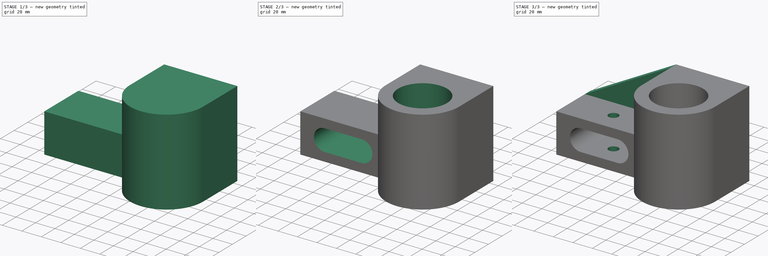
[diagram: build sequence overview — one tinted view per stage of 3, left to right]
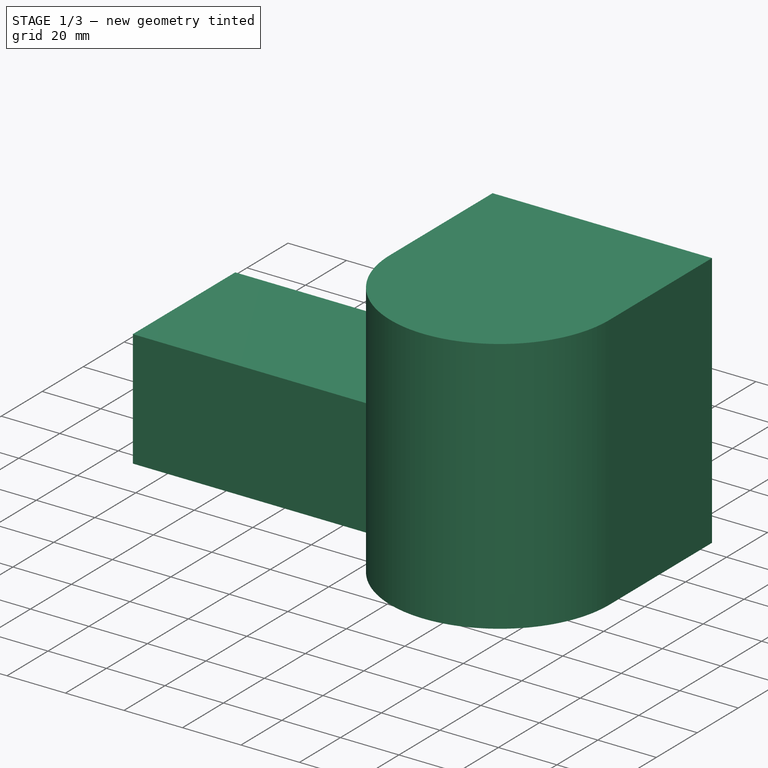
[diagram: stage 1 of 3 — iso view after this stage's code; geometry added in this stage tinted green]
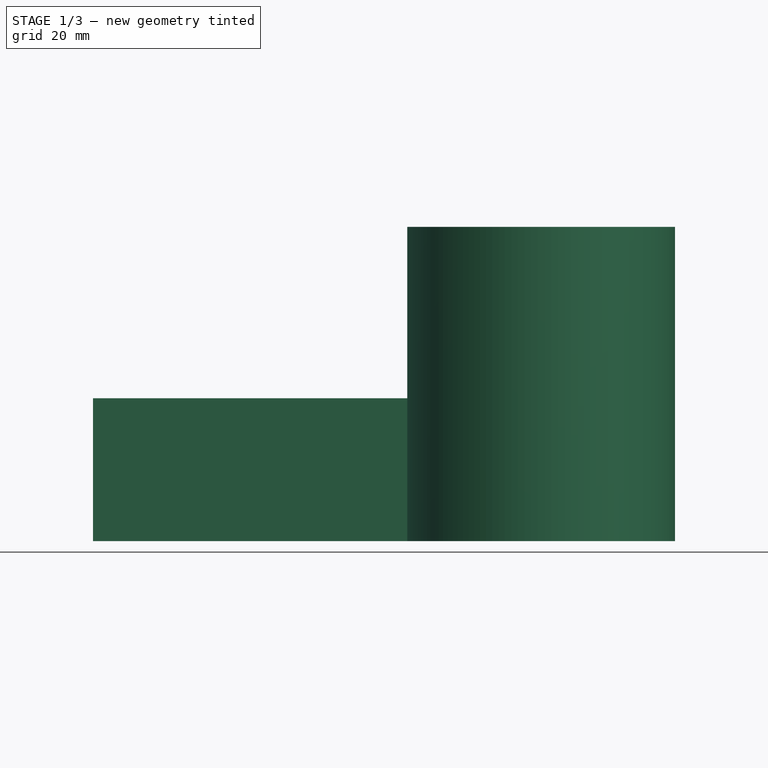
[diagram: stage 1 of 3 — front view after this stage's code; geometry added in this stage tinted green]
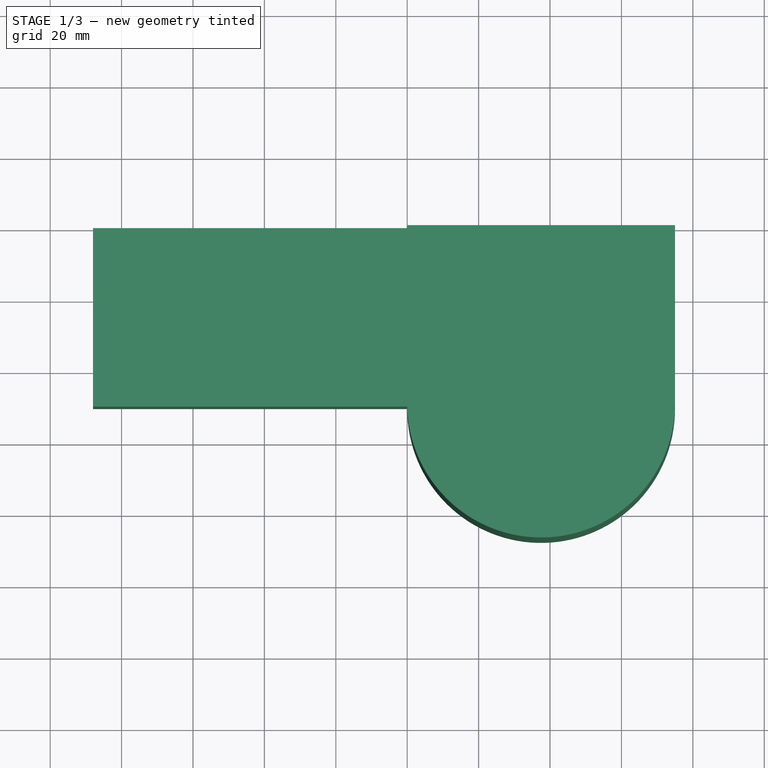
[diagram: stage 1 of 3 — top view after this stage's code; geometry added in this stage tinted green]
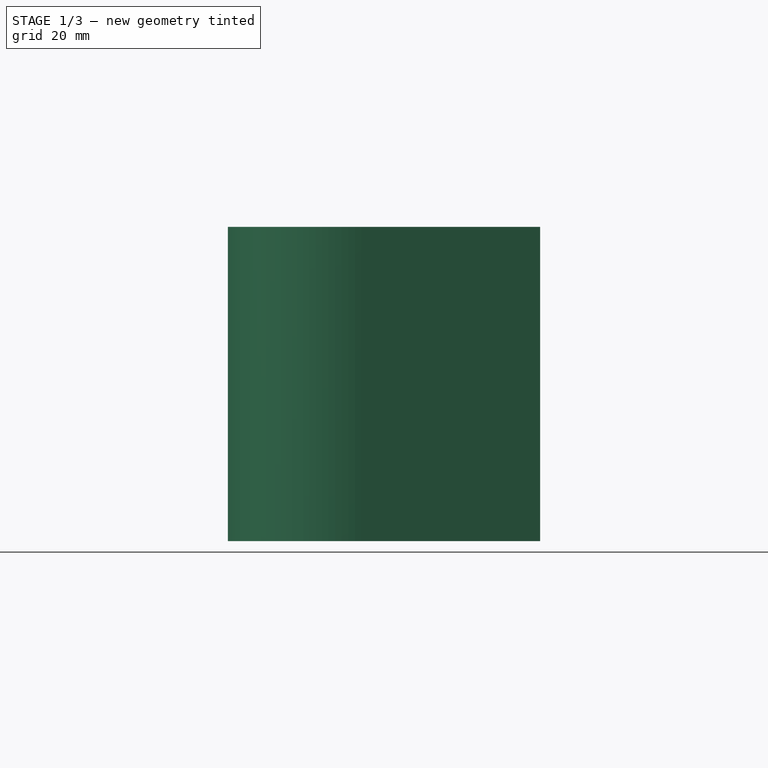
[diagram: stage 1 of 3 — right view after this stage's code; geometry added in this stage tinted green]
FCSTD DOCUMENT  (FreeCAD 0.18R4 (GitTag))
Label: lab 7 q4
License: All rights reserved
LicenseURL: http://en.wikipedia.org/wiki/All_rights_reserved
objects: Sketcher::SketchObject×9, PartDesign::Pad×3, PartDesign::Hole×2, PartDesign::Body×2, PartDesign::Pocket×1
note: 23 computed .brp shape members not serialized (recipe doc carries the construction recipe); baked Part::Feature solids carry a one-line shape summary decoded from their .brp

FEATURE [Sketcher::SketchObject] Sketch
  MapMode = 5
  Support = -> [XY_Plane]
  sketch-geometry (4):
    g0: LineSegment StartX=6.06732e-11 StartY=0 StartZ=0 EndX=75 EndY=0 EndZ=0
    g1: LineSegment StartX=75 StartY=0 StartZ=0 EndX=75 EndY=-50 EndZ=0
    g2: LineSegment StartX=6.06732e-11 StartY=0 StartZ=0 EndX=6.06732e-11 EndY=-50 EndZ=0
    g3: ArcOfCircle CenterX=37.5 CenterY=-49.9999 CenterZ=0 NormalX=0 NormalY=0 NormalZ=1 AngleXU=0 Radius=37.5 StartAngle=3.14159 EndAngle=6.28318
  constraints (12):
    c: Coincident(g0,g-1)
    c: Coincident(g2,g0)
    c: Horizontal(g0)
    c: Vertical(g2)
    c: Distance(g0) = 75
    c: Coincident(g1,g0)
    c: Vertical(g1)
    c: Distance(g2) = 50
    c: Distance(g1) = 50
    c: Coincident(g3,g2)
    c: Coincident(g3,g1)
    c: Radius(g3) = 37.5
FEATURE [PartDesign::Pad] Pad
  Length = 88
  Length2 = 100
  Midplane = true
  Profile = -> Sketch
  Type = 0
FEATURE [Sketcher::SketchObject] Sketch001
  MapMode = 5
  Placement = pos=(6.06732e-11,0,0) rot=(0.57735,-0.57735,-0.57735;2.0944rad)
  Support = -> [Pad]
FEATURE [Sketcher::SketchObject] Sketch002
  MapMode = 5
  Placement = pos=(6.06732e-11,0,0) rot=(0.57735,-0.57735,-0.57735;2.0944rad)
  Support = -> [Pad]
FEATURE [Sketcher::SketchObject] Sketch003
  MapMode = 5
  Placement = pos=(6.06732e-11,0,0) rot=(0.57735,-0.57735,-0.57735;2.0944rad)
  Support = -> [Pad]
FEATURE [Sketcher::SketchObject] Sketch004
  MapMode = 5
  Placement = pos=(6.06732e-11,0,0) rot=(0.57735,-0.57735,-0.57735;2.0944rad)
  Support = -> [Pad]
  sketch-geometry (5):
    g0: GeomPoint X=-1.42399e-05 Y=-4 Z=0
    g1: LineSegment StartX=-1.42399e-05 StartY=-4 StartZ=0 EndX=50 EndY=-4 EndZ=0
    g2: LineSegment StartX=50 StartY=-4 StartZ=0 EndX=50 EndY=-44 EndZ=0
    g3: LineSegment StartX=50 StartY=-44 StartZ=0 EndX=-1.42399e-05 EndY=-44 EndZ=0
    g4: LineSegment StartX=-1.42399e-05 StartY=-44 StartZ=0 EndX=-1.42399e-05 EndY=-4 EndZ=0
  constraints (13):
    c: Distance(g0,g-1) = 4
    c: DistanceY(g0,g-1) = 4
    c: Coincident(g1,g2)
    c: Coincident(g2,g3)
    c: Coincident(g3,g4)
    c: Coincident(g4,g1)
    c: Horizontal(g1)
    c: Horizontal(g3)
    c: Vertical(g2)
    c: Vertical(g4)
    c: Coincident(g1,g0)
    c: Distance(g1) = 50
    c: Distance(g4) = 40
FEATURE [PartDesign::Pad] Pad001
  BaseFeature = -> Pad
  Length = 88
  Length2 = 100
  Profile = -> Sketch004
  Type = 0
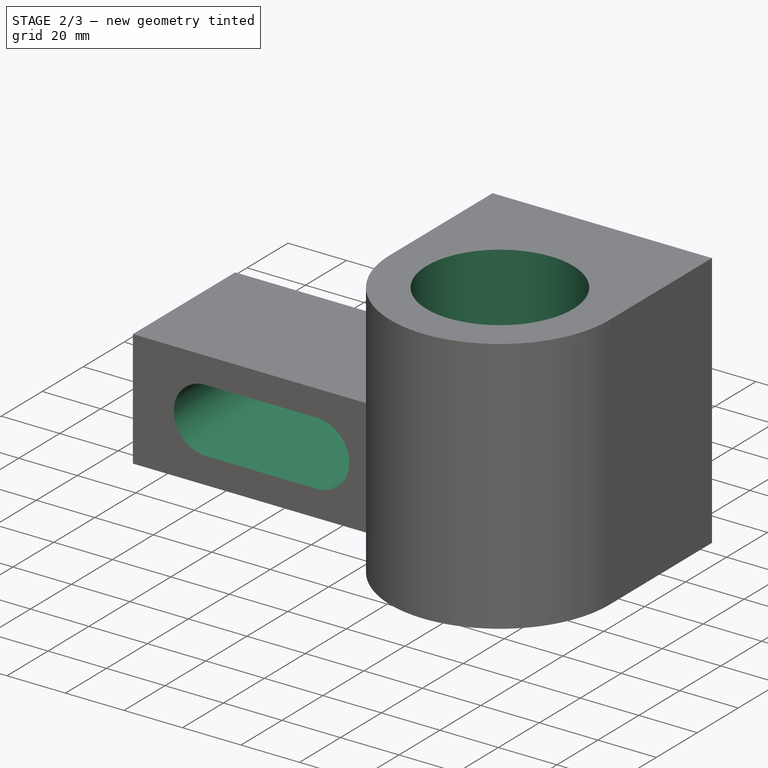
[diagram: stage 2 of 3 — iso view after this stage's code; geometry added in this stage tinted green]
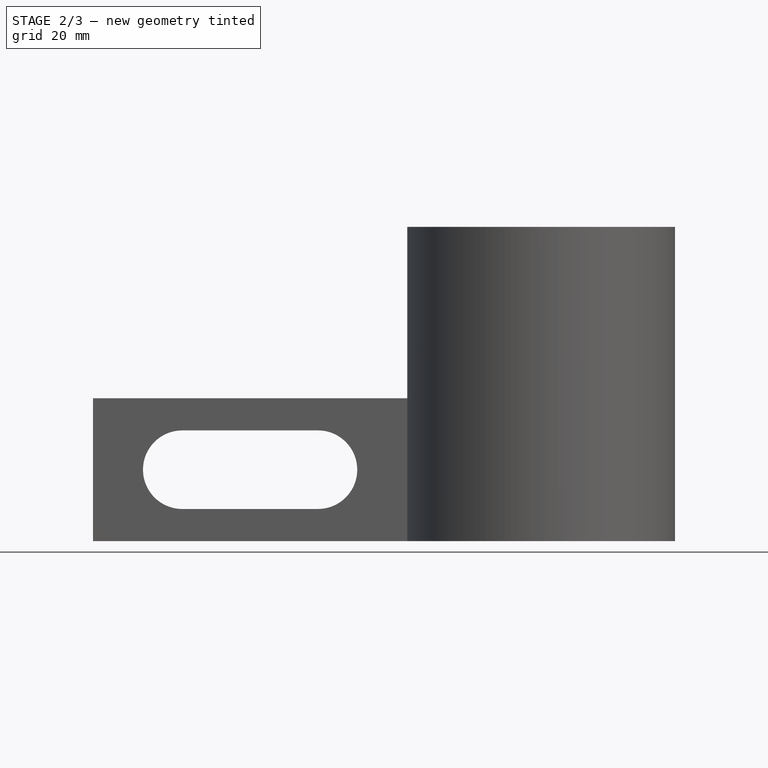
[diagram: stage 2 of 3 — front view after this stage's code; geometry added in this stage tinted green]
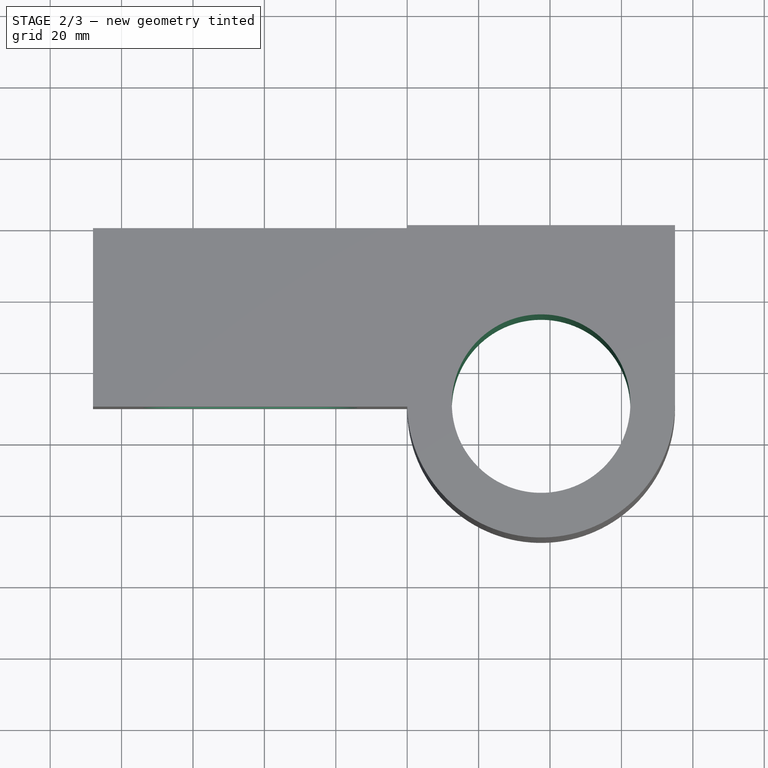
[diagram: stage 2 of 3 — top view after this stage's code; geometry added in this stage tinted green]
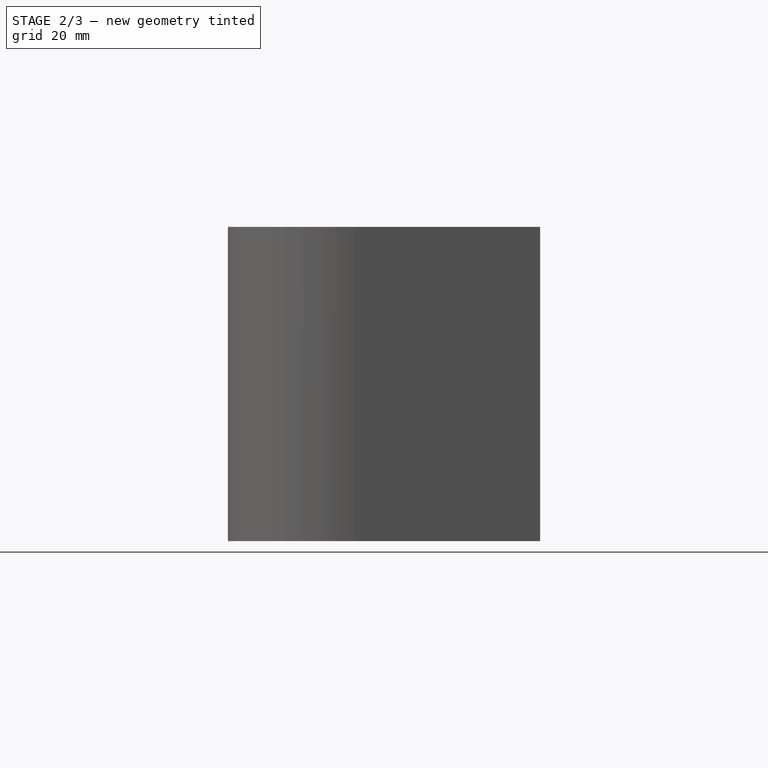
[diagram: stage 2 of 3 — right view after this stage's code; geometry added in this stage tinted green]
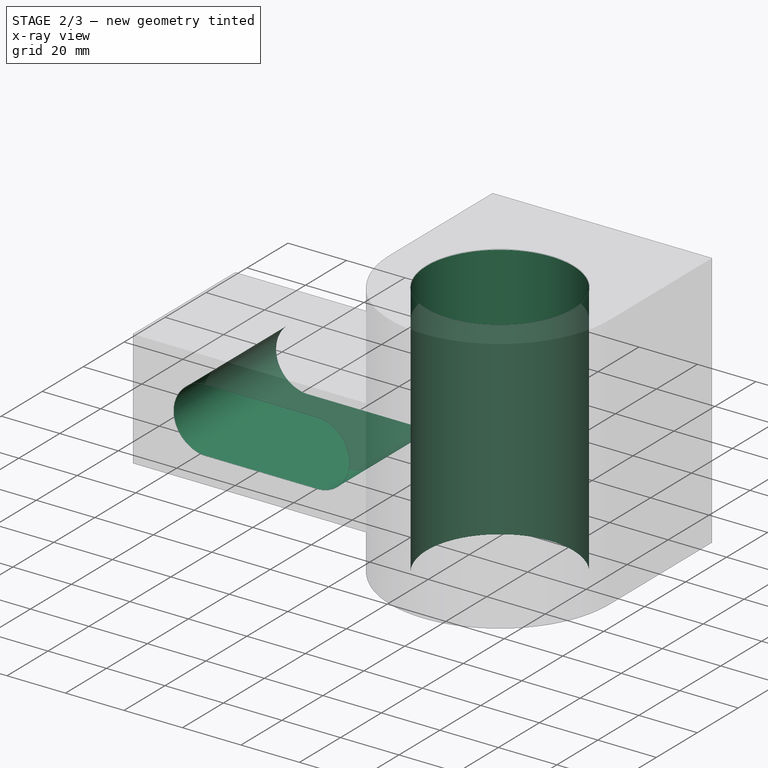
[diagram: stage 2 of 3 — x-ray composite at the iso view; earlier geometry ghosted, this stage's added geometry solid]
FEATURE [Sketcher::SketchObject] Sketch005
  MapMode = 5
  Placement = pos=(0,0,44) rot=(0,0,1;0rad)
  Support = -> [Pad001]
  sketch-geometry (2):
    g0: GeomPoint X=37.5 Y=-50 Z=0
    g1: Circle CenterX=37.5 CenterY=-50 CenterZ=0 NormalX=0 NormalY=0 NormalZ=1 AngleXU=0 Radius=25
  constraints (4):
    c: DistanceX(g-1,g0) = 37.5
    c: DistanceY(g0,g-1) = 50
    c: Coincident(g1,g0)
    c: Radius(g1) = 25
FEATURE [PartDesign::Hole] Hole
  BaseFeature = -> Pad001
  Depth = 88
  DepthType = 0
  Diameter = 50
  DrillPoint = 0
  DrillPointAngle = 0
  HoleCutCountersinkAngle = 90
  HoleCutDepth = 0
  HoleCutDiameter = 0
  HoleCutType = 0
  ModelActualThread = false
  Profile = -> Sketch005
  Tapered = false
  TaperedAngle = 90
  ThreadAngle = 0
  ThreadClass = 0
  ThreadCutOffInner = 0
  ThreadCutOffOuter = 0
  ThreadDirection = 0
  ThreadFit = 0
  ThreadPitch = 0
  ThreadSize = 0
  ThreadType = 0
  Threaded = false
FEATURE [Sketcher::SketchObject] Sketch006
  MapMode = 5
  Placement = pos=(0,-50,0) rot=(1,0,0;1.5708rad)
  Support = -> [Hole]
  sketch-geometry (6):
    g0: GeomPoint X=-25 Y=-24 Z=0
    g1: GeomPoint X=-63 Y=-24 Z=0
    g2: ArcOfCircle CenterX=-25 CenterY=-24 CenterZ=0 NormalX=0 NormalY=0 NormalZ=1 AngleXU=0 Radius=11 StartAngle=4.71239 EndAngle=7.85398
    g3: ArcOfCircle CenterX=-63 CenterY=-24 CenterZ=0 NormalX=0 NormalY=0 NormalZ=1 AngleXU=0 Radius=11 StartAngle=1.5708 EndAngle=4.71239
    g4: LineSegment StartX=-63 StartY=-13 StartZ=0 EndX=-25 EndY=-13 EndZ=0
    g5: LineSegment StartX=-63 StartY=-35 StartZ=0 EndX=-25 EndY=-35 EndZ=0
  constraints (16):
    c: DistanceX(g0,g-1) = 25
    c: DistanceY(g0,g-1) = 24
    c: DistanceX(g1,g0) = 38
    c: DistanceY(g0,g1) = 0
    c: Coincident(g2,g0)
    c: DistanceY(g2,g0) = 11
    c: DistanceY(g0,g2) = 11
    c: DistanceX(g0,g2) = 0
    c: Coincident(g3,g1)
    c: DistanceX(g3,g1) = 0
    c: DistanceX(g3,g1) = 0
    c: Radius(g3) = 11
    c: Coincident(g4,g3)
    c: Coincident(g4,g2)
    c: Coincident(g5,g3)
    c: Coincident(g5,g2)
FEATURE [PartDesign::Pocket] Pocket
  BaseFeature = -> Hole
  Length = 50
  Length2 = 100
  Profile = -> Sketch006
  Type = 0
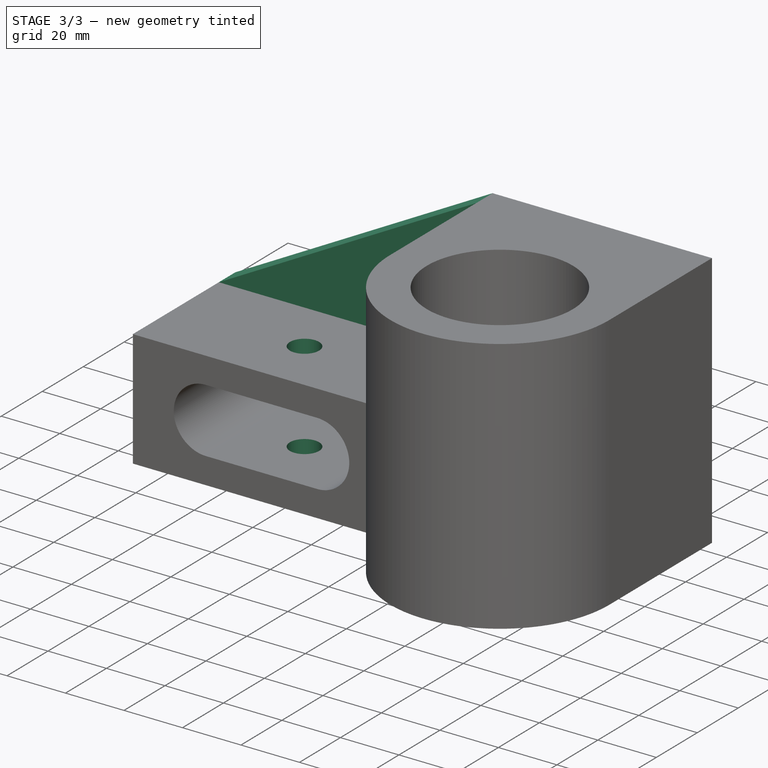
[diagram: stage 3 of 3 — iso view after this stage's code; geometry added in this stage tinted green]
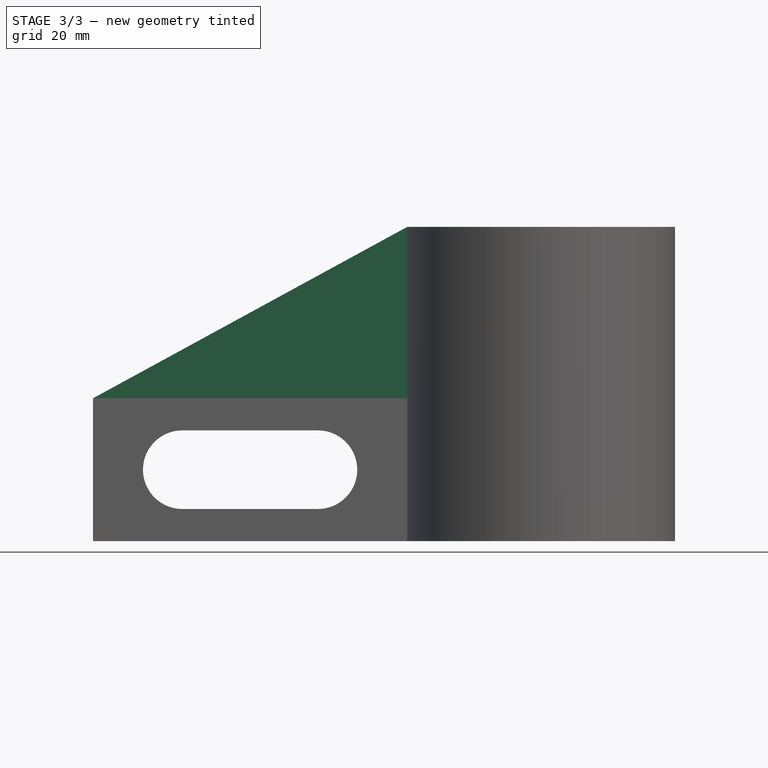
[diagram: stage 3 of 3 — front view after this stage's code; geometry added in this stage tinted green]
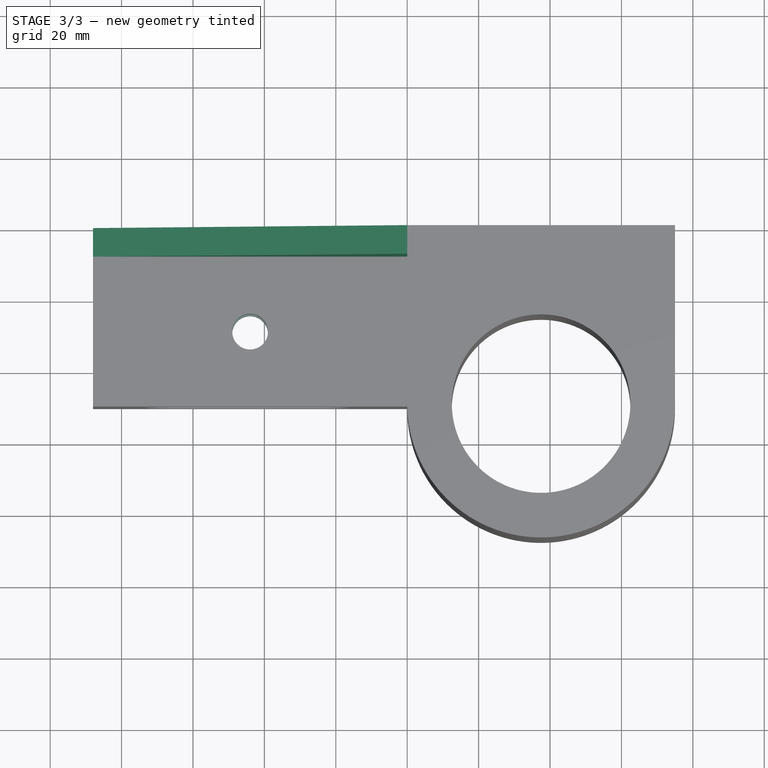
[diagram: stage 3 of 3 — top view after this stage's code; geometry added in this stage tinted green]
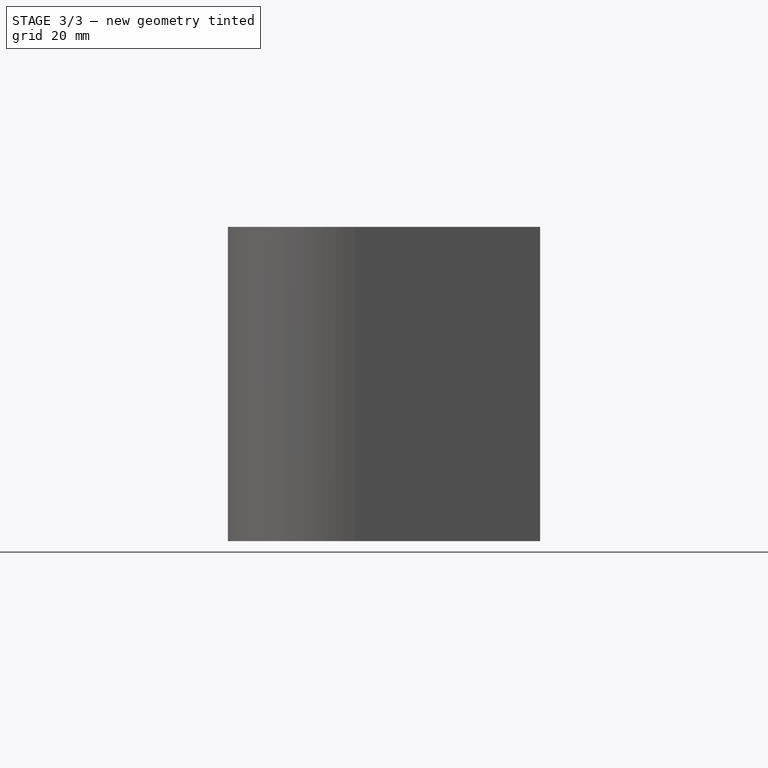
[diagram: stage 3 of 3 — right view after this stage's code; geometry added in this stage tinted green]
FEATURE [Sketcher::SketchObject] Sketch007
  MapMode = 5
  Placement = pos=(0,0,-4) rot=(0,0,1;0rad)
  Support = -> [Pocket]
  sketch-geometry (1):
    g0: Circle CenterX=-44 CenterY=-29 CenterZ=0 NormalX=0 NormalY=0 NormalZ=1 AngleXU=0 Radius=5
  constraints (3):
    c: DistanceY(g0,g-1) = 29
    c: DistanceX(g0,g-1) = 44
    c: Radius(g0) = 5
FEATURE [PartDesign::Hole] Hole001
  BaseFeature = -> Pocket
  Depth = 40
  DepthType = 0
  Diameter = 10
  DrillPoint = 0
  DrillPointAngle = 118
  HoleCutCountersinkAngle = 90
  HoleCutDepth = 0
  HoleCutDiameter = 0
  HoleCutType = 0
  ModelActualThread = false
  Profile = -> Sketch007
  Tapered = false
  TaperedAngle = 90
  ThreadAngle = 0
  ThreadClass = 0
  ThreadCutOffInner = 0
  ThreadCutOffOuter = 0
  ThreadDirection = 0
  ThreadFit = 0
  ThreadPitch = 0
  ThreadSize = 0
  ThreadType = 0
  Threaded = false
FEATURE [Sketcher::SketchObject] Sketch008
  MapMode = 5
  Placement = pos=(0,0,0) rot=(0,0.707107,0.707107;3.14159rad)
  Support = -> [Hole001]
  sketch-geometry (4):
    g0: GeomPoint X=0 Y=-4 Z=0
    g1: LineSegment StartX=0 StartY=-4 StartZ=0 EndX=88 EndY=-4 EndZ=0
    g2: LineSegment StartX=0 StartY=44 StartZ=0 EndX=88 EndY=-4 EndZ=0
    g3: LineSegment StartX=0 StartY=44 StartZ=0 EndX=0 EndY=-4 EndZ=0
  constraints (10):
    c: DistanceY(g0,g-1) = 4
    c: DistanceX(g-1,g0) = 0
    c: Coincident(g1,g0)
    c: Horizontal(g1)
    c: Coincident(g3,g0)
    c: Vertical(g3)
    c: Distance(g3) = 48
    c: Distance(g1) = 88
    c: Coincident(g2,g3)
    c: Coincident(g2,g1)
FEATURE [PartDesign::Pad] Pad002
  BaseFeature = -> Hole001
  Length = 8
  Length2 = 100
  Profile = -> Sketch008
  Reversed = true
  Type = 0
FEATURE [PartDesign::Body] Body
  Group = -> [Sketch,Pad,Sketch001,Sketch002,Sketch003,Sketch004,Pad001,Sketch005,Hole,Sketch006,Pocket,Sketch007,Hole001,Sketch008,Pad002]
  Origin = -> Origin
  Tip = -> Pad002
FEATURE [PartDesign::Body] Body001
  Origin = -> Origin001
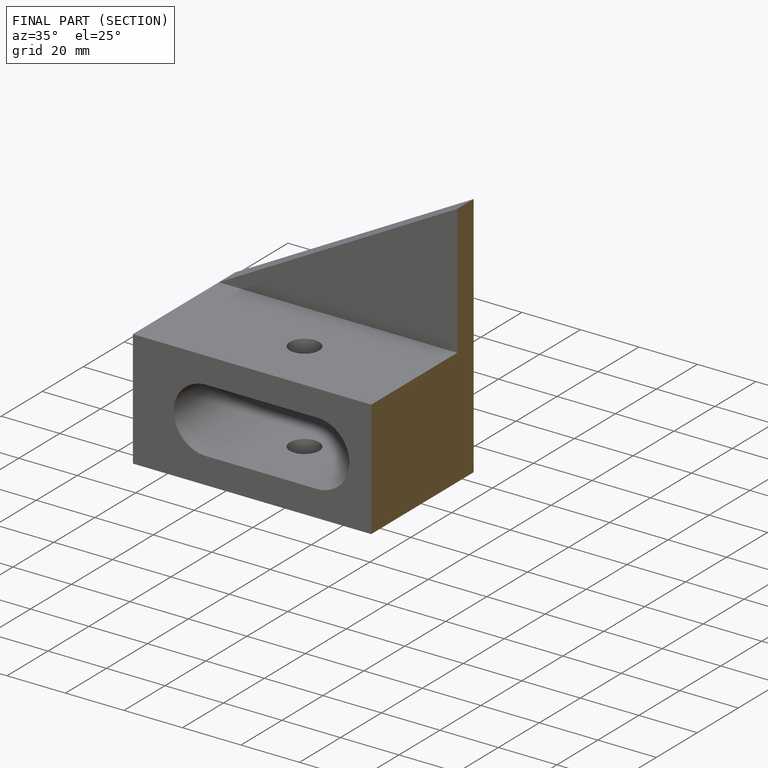
[diagram: finished part — half-section view (interior)]
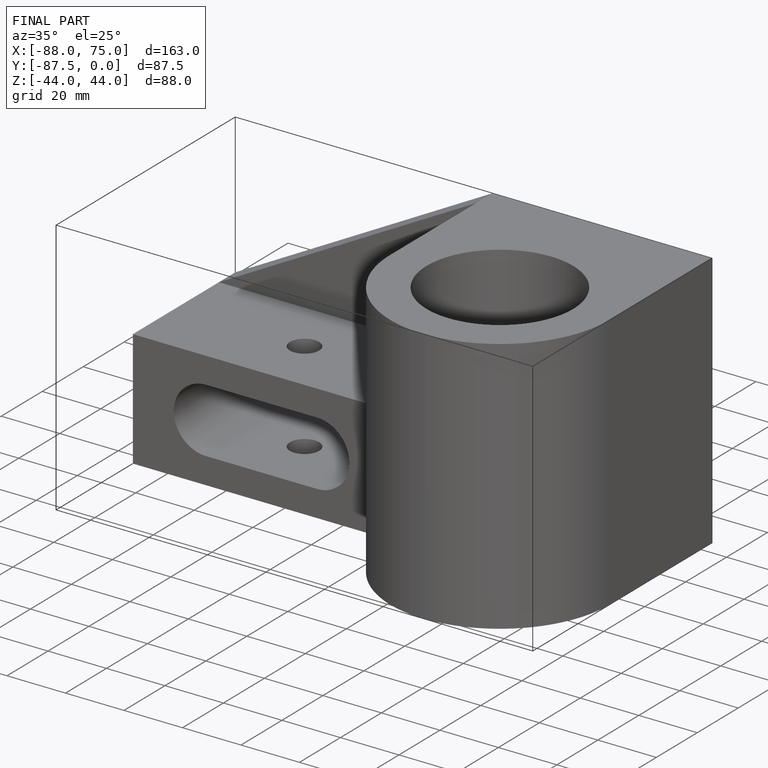
[diagram: finished part — iso view with bounding-box wireframe]
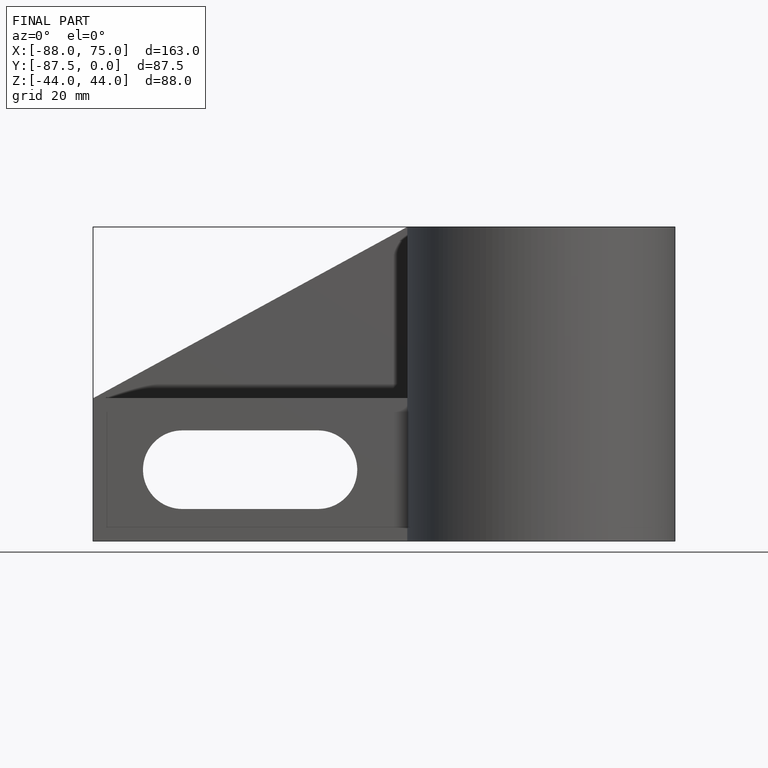
[diagram: finished part — front view with bounding-box wireframe]
